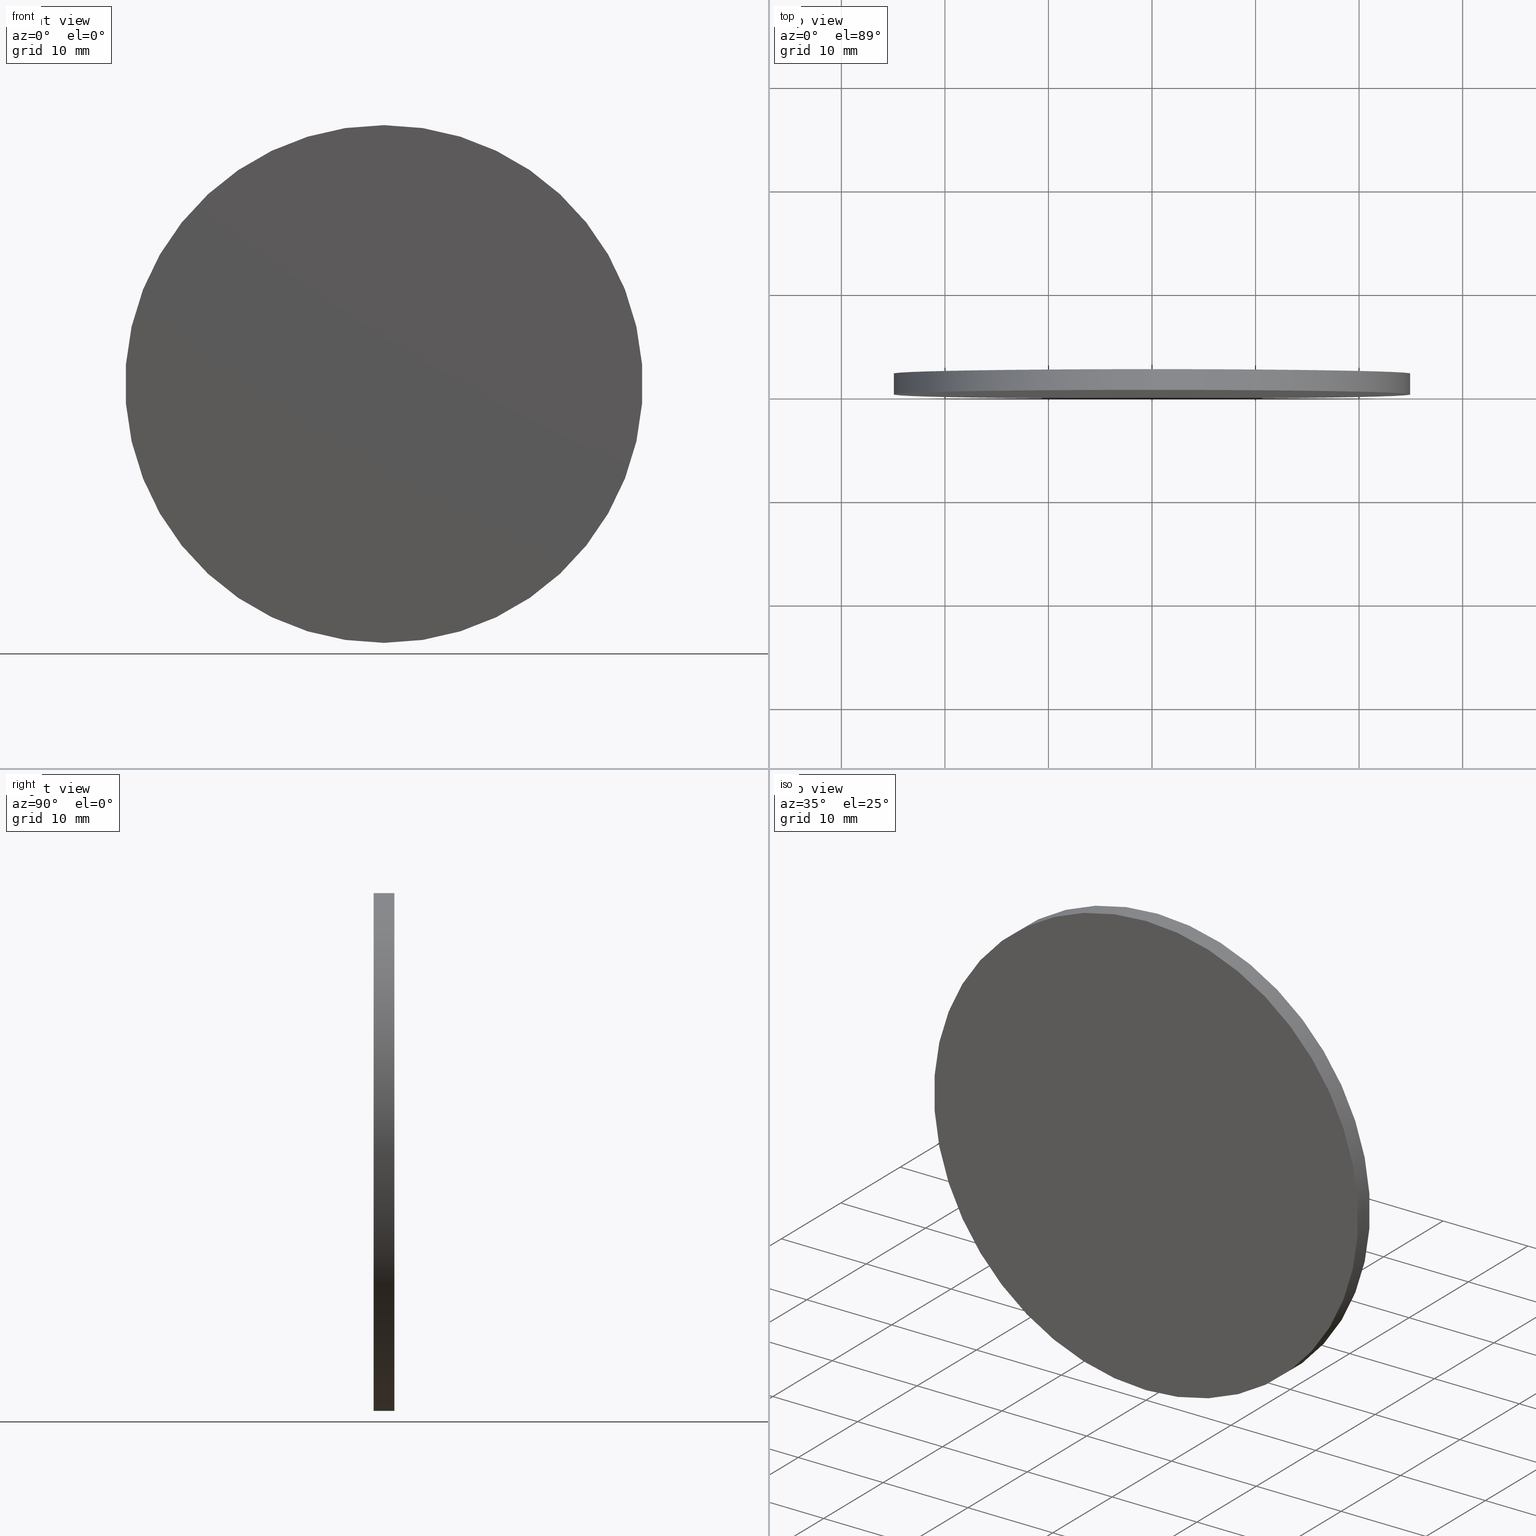
[diagram: canonical four-view strip — front | top / right | iso, engineering-drawing reading convention]
A machine part, canonical four-view strip (front | top / right | iso — engineering-drawing reading convention). The complete STEP part file that produces these views, byte-faithful:
ISO-10303-21;
HEADER;
FILE_DESCRIPTION (( 'STEP AP214' ),
    '1' );
FILE_NAME ('208633.STEP',
    '2019-07-26T01:50:37',
    ( 'user' ),
    ( '΢���й�' ),
    'SwSTEP 2.0',
    'SolidWorks 2016',
    '' );
FILE_SCHEMA (( 'AUTOMOTIVE_DESIGN' ));
ENDSEC;

DATA;
#1 = DIRECTION ( 'NONE',  ( 0.0000000000000000000, 0.0000000000000000000, -1.000000000000000000 ) ) ;
#2 = AXIS2_PLACEMENT_3D ( 'NONE', #122, #9, #77 ) ;
#3 = VERTEX_POINT ( 'NONE', #20 ) ;
#4 = ADVANCED_FACE ( 'NONE', ( #138 ), #74, .T. ) ;
#5 = VECTOR ( 'NONE', #100, 1000.000000000000000 ) ;
#6 =( NAMED_UNIT ( * ) PLANE_ANGLE_UNIT ( ) SI_UNIT ( $, .RADIAN. ) );
#7 = FILL_AREA_STYLE_COLOUR ( '', #84 ) ;
#8 = AXIS2_PLACEMENT_3D ( 'NONE', #79, #139, #68 ) ;
#9 = DIRECTION ( 'NONE',  ( 0.0000000000000000000, 1.000000000000000000, 0.0000000000000000000 ) ) ;
#10 = CARTESIAN_POINT ( 'NONE',  ( 0.0000000000000000000, 2.000000000000000000, 0.0000000000000000000 ) ) ;
#11 = CARTESIAN_POINT ( 'NONE',  ( 0.0000000000000000000, 2.000000000000000000, -25.00000000000000000 ) ) ;
#12 = DIRECTION ( 'NONE',  ( -0.0000000000000000000, -1.000000000000000000, -0.0000000000000000000 ) ) ;
#13 = FACE_OUTER_BOUND ( 'NONE', #58, .T. ) ;
#14 = VECTOR ( 'NONE', #70, 1000.000000000000000 ) ;
#15 = AXIS2_PLACEMENT_3D ( 'NONE', #34, #102, #19 ) ;
#16 = SURFACE_STYLE_USAGE ( .BOTH. , #96 ) ;
#17 = CARTESIAN_POINT ( 'NONE',  ( 3.061616997868383000E-015, 0.0000000000000000000, 25.00000000000000000 ) ) ;
#18 = PRODUCT_RELATED_PRODUCT_CATEGORY ( 'part', '', ( #117 ) ) ;
#19 = DIRECTION ( 'NONE',  ( 0.0000000000000000000, 0.0000000000000000000, 1.000000000000000000 ) ) ;
#20 = CARTESIAN_POINT ( 'NONE',  ( 0.0000000000000000000, 2.000000000000000000, -25.00000000000000000 ) ) ;
#21 = UNCERTAINTY_MEASURE_WITH_UNIT (LENGTH_MEASURE( 1.000000000000000100E-005 ), #135, 'distance_accuracy_value', 'NONE');
#22 = ORIENTED_EDGE ( 'NONE', *, *, #25, .F. ) ;
#23 = PRESENTATION_LAYER_ASSIGNMENT (  '', '', ( #78 ) ) ;
#24 = ORIENTED_EDGE ( 'NONE', *, *, #66, .T. ) ;
#25 = EDGE_CURVE ( 'NONE', #86, #115, #98, .T. ) ;
#26 = SURFACE_STYLE_FILL_AREA ( #29 ) ;
#27 = PRODUCT_DEFINITION_FORMATION_WITH_SPECIFIED_SOURCE ( '�κ�', '', #117, .NOT_KNOWN. ) ;
#28 = CLOSED_SHELL ( 'NONE', ( #61, #4, #105, #48 ) ) ;
#29 = FILL_AREA_STYLE ('',( #7 ) ) ;
#30 =( NAMED_UNIT ( * ) PLANE_ANGLE_UNIT ( ) SI_UNIT ( $, .RADIAN. ) );
#31 = AXIS2_PLACEMENT_3D ( 'NONE', #10, #54, #82 ) ;
#32 = ORIENTED_EDGE ( 'NONE', *, *, #66, .F. ) ;
#33 = FACE_OUTER_BOUND ( 'NONE', #60, .T. ) ;
#34 = CARTESIAN_POINT ( 'NONE',  ( 0.0000000000000000000, 2.000000000000000000, 0.0000000000000000000 ) ) ;
#35 = AXIS2_PLACEMENT_3D ( 'NONE', #130, #55, #124 ) ;
#36 = EDGE_CURVE ( 'NONE', #111, #3, #125, .T. ) ;
#37 = AXIS2_PLACEMENT_3D ( 'NONE', #89, #42, #110 ) ;
#38 = APPLICATION_PROTOCOL_DEFINITION ( 'draft international standard', 'automotive_design', 1998, #118 ) ;
#39 = EDGE_CURVE ( 'NONE', #115, #86, #44, .T. ) ;
#40 = SURFACE_STYLE_USAGE ( .BOTH. , #120 ) ;
#41 =( GEOMETRIC_REPRESENTATION_CONTEXT ( 3 ) GLOBAL_UNCERTAINTY_ASSIGNED_CONTEXT ( ( #85 ) ) GLOBAL_UNIT_ASSIGNED_CONTEXT ( ( #87, #6, #76 ) ) REPRESENTATION_CONTEXT ( 'NONE', 'WORKASPACE' ) );
#42 = DIRECTION ( 'NONE',  ( 0.0000000000000000000, 1.000000000000000000, 0.0000000000000000000 ) ) ;
#43 = SHAPE_DEFINITION_REPRESENTATION ( #92, #133 ) ;
#44 = CIRCLE ( 'NONE', #112, 25.00000000000000000 ) ;
#45 = PRODUCT_DEFINITION ( 'δ֪', '', #27, #52 ) ;
#46 = EDGE_CURVE ( 'NONE', #3, #115, #72, .T. ) ;
#47 = ORIENTED_EDGE ( 'NONE', *, *, #39, .T. ) ;
#48 = ADVANCED_FACE ( 'NONE', ( #13 ), #123, .F. ) ;
#49 = EDGE_LOOP ( 'NONE', ( #134, #116 ) ) ;
#50 = PRODUCT_CONTEXT ( 'NONE', #107, 'mechanical' ) ;
#51 = FILL_AREA_STYLE ('',( #128 ) ) ;
#52 = PRODUCT_DEFINITION_CONTEXT ( 'detailed design', #118, 'design' ) ;
#53 = CARTESIAN_POINT ( 'NONE',  ( 0.0000000000000000000, 0.0000000000000000000, -25.00000000000000000 ) ) ;
#54 = DIRECTION ( 'NONE',  ( -0.0000000000000000000, -1.000000000000000000, -0.0000000000000000000 ) ) ;
#55 = DIRECTION ( 'NONE',  ( 0.0000000000000000000, 1.000000000000000000, 0.0000000000000000000 ) ) ;
#56 = ORIENTED_EDGE ( 'NONE', *, *, #57, .F. ) ;
#57 = EDGE_CURVE ( 'NONE', #3, #111, #121, .T. ) ;
#58 = EDGE_LOOP ( 'NONE', ( #62, #22 ) ) ;
#59 = PRESENTATION_STYLE_ASSIGNMENT (( #40 ) ) ;
#60 = EDGE_LOOP ( 'NONE', ( #132, #24, #113, #71 ) ) ;
#61 = ADVANCED_FACE ( 'NONE', ( #33 ), #91, .T. ) ;
#62 = ORIENTED_EDGE ( 'NONE', *, *, #39, .F. ) ;
#63 = FACE_OUTER_BOUND ( 'NONE', #49, .T. ) ;
#64 = MECHANICAL_DESIGN_GEOMETRIC_PRESENTATION_REPRESENTATION (  '', ( #78 ), #80 ) ;
#65 = DIRECTION ( 'NONE',  ( 0.0000000000000000000, 0.0000000000000000000, 1.000000000000000000 ) ) ;
#66 = EDGE_CURVE ( 'NONE', #111, #86, #104, .T. ) ;
#67 =( NAMED_UNIT ( * ) PLANE_ANGLE_UNIT ( ) SI_UNIT ( $, .RADIAN. ) );
#68 = DIRECTION ( 'NONE',  ( 0.0000000000000000000, 0.0000000000000000000, 1.000000000000000000 ) ) ;
#69 = DIRECTION ( 'NONE',  ( 0.0000000000000000000, 0.0000000000000000000, 1.000000000000000000 ) ) ;
#70 = DIRECTION ( 'NONE',  ( -0.0000000000000000000, -1.000000000000000000, -0.0000000000000000000 ) ) ;
#71 = ORIENTED_EDGE ( 'NONE', *, *, #46, .F. ) ;
#72 = LINE ( 'NONE', #11, #14 ) ;
#73 =( GEOMETRIC_REPRESENTATION_CONTEXT ( 3 ) GLOBAL_UNCERTAINTY_ASSIGNED_CONTEXT ( ( #21 ) ) GLOBAL_UNIT_ASSIGNED_CONTEXT ( ( #135, #67, #127 ) ) REPRESENTATION_CONTEXT ( 'NONE', 'WORKASPACE' ) );
#74 = CYLINDRICAL_SURFACE ( 'NONE', #93, 25.00000000000000000 ) ;
#75 = PRESENTATION_LAYER_ASSIGNMENT (  '', '', ( #101 ) ) ;
#76 =( NAMED_UNIT ( * ) SI_UNIT ( $, .STERADIAN. ) SOLID_ANGLE_UNIT ( ) );
#77 = DIRECTION ( 'NONE',  ( 0.0000000000000000000, -0.0000000000000000000, 1.000000000000000000 ) ) ;
#78 = STYLED_ITEM ( 'NONE', ( #59 ), #114 ) ;
#79 = CARTESIAN_POINT ( 'NONE',  ( 0.0000000000000000000, 2.000000000000000000, 0.0000000000000000000 ) ) ;
#80 =( GEOMETRIC_REPRESENTATION_CONTEXT ( 3 ) GLOBAL_UNCERTAINTY_ASSIGNED_CONTEXT ( ( #90 ) ) GLOBAL_UNIT_ASSIGNED_CONTEXT ( ( #108, #30, #97 ) ) REPRESENTATION_CONTEXT ( 'NONE', 'WORKASPACE' ) );
#81 = CARTESIAN_POINT ( 'NONE',  ( 0.0000000000000000000, 0.0000000000000000000, 0.0000000000000000000 ) ) ;
#82 = DIRECTION ( 'NONE',  ( 0.0000000000000000000, 0.0000000000000000000, -1.000000000000000000 ) ) ;
#83 = ORIENTED_EDGE ( 'NONE', *, *, #46, .T. ) ;
#84 = COLOUR_RGB ( '',1.000000000000000000, 1.000000000000000000, 1.000000000000000000 ) ;
#85 = UNCERTAINTY_MEASURE_WITH_UNIT (LENGTH_MEASURE( 1.000000000000000100E-005 ), #87, 'distance_accuracy_value', 'NONE');
#86 = VERTEX_POINT ( 'NONE', #17 ) ;
#87 =( LENGTH_UNIT ( ) NAMED_UNIT ( * ) SI_UNIT ( .MILLI., .METRE. ) );
#88 = SURFACE_STYLE_FILL_AREA ( #51 ) ;
#89 = CARTESIAN_POINT ( 'NONE',  ( 0.0000000000000000000, 0.0000000000000000000, 0.0000000000000000000 ) ) ;
#90 = UNCERTAINTY_MEASURE_WITH_UNIT (LENGTH_MEASURE( 1.000000000000000100E-005 ), #108, 'distance_accuracy_value', 'NONE');
#91 = CYLINDRICAL_SURFACE ( 'NONE', #31, 25.00000000000000000 ) ;
#92 = PRODUCT_DEFINITION_SHAPE ( 'NONE', 'NONE',  #45 ) ;
#93 = AXIS2_PLACEMENT_3D ( 'NONE', #103, #12, #1 ) ;
#94 = EDGE_LOOP ( 'NONE', ( #32, #56, #83, #47 ) ) ;
#95 = COLOUR_RGB ( '',1.000000000000000000, 1.000000000000000000, 1.000000000000000000 ) ;
#96 = SURFACE_SIDE_STYLE ('',( #26 ) ) ;
#97 =( NAMED_UNIT ( * ) SI_UNIT ( $, .STERADIAN. ) SOLID_ANGLE_UNIT ( ) );
#98 = CIRCLE ( 'NONE', #35, 25.00000000000000000 ) ;
#99 = PLANE ( 'NONE',  #2 ) ;
#100 = DIRECTION ( 'NONE',  ( -0.0000000000000000000, -1.000000000000000000, -0.0000000000000000000 ) ) ;
#101 = STYLED_ITEM ( 'NONE', ( #136 ), #133 ) ;
#102 = DIRECTION ( 'NONE',  ( 0.0000000000000000000, 1.000000000000000000, 0.0000000000000000000 ) ) ;
#103 = CARTESIAN_POINT ( 'NONE',  ( 0.0000000000000000000, 2.000000000000000000, 0.0000000000000000000 ) ) ;
#104 = LINE ( 'NONE', #129, #5 ) ;
#105 = ADVANCED_FACE ( 'NONE', ( #63 ), #99, .T. ) ;
#106 = AXIS2_PLACEMENT_3D ( 'NONE', #137, #65, #126 ) ;
#107 = APPLICATION_CONTEXT ( 'automotive_design' ) ;
#108 =( LENGTH_UNIT ( ) NAMED_UNIT ( * ) SI_UNIT ( .MILLI., .METRE. ) );
#109 = CARTESIAN_POINT ( 'NONE',  ( 3.061616997868383000E-015, 2.000000000000000000, 25.00000000000000000 ) ) ;
#110 = DIRECTION ( 'NONE',  ( 0.0000000000000000000, -0.0000000000000000000, 1.000000000000000000 ) ) ;
#111 = VERTEX_POINT ( 'NONE', #109 ) ;
#112 = AXIS2_PLACEMENT_3D ( 'NONE', #81, #140, #69 ) ;
#113 = ORIENTED_EDGE ( 'NONE', *, *, #25, .T. ) ;
#114 = MANIFOLD_SOLID_BREP ( '͹̨-����1', #28 ) ;
#115 = VERTEX_POINT ( 'NONE', #53 ) ;
#116 = ORIENTED_EDGE ( 'NONE', *, *, #36, .T. ) ;
#117 = PRODUCT ( '208633', '208633', '', ( #50 ) ) ;
#118 = APPLICATION_CONTEXT ( 'automotive_design' ) ;
#119 = APPLICATION_PROTOCOL_DEFINITION ( 'draft international standard', 'automotive_design', 1998, #107 ) ;
#120 = SURFACE_SIDE_STYLE ('',( #88 ) ) ;
#121 = CIRCLE ( 'NONE', #8, 25.00000000000000000 ) ;
#122 = CARTESIAN_POINT ( 'NONE',  ( 0.0000000000000000000, 2.000000000000000000, 0.0000000000000000000 ) ) ;
#123 = PLANE ( 'NONE',  #37 ) ;
#124 = DIRECTION ( 'NONE',  ( 0.0000000000000000000, 0.0000000000000000000, 1.000000000000000000 ) ) ;
#125 = CIRCLE ( 'NONE', #15, 25.00000000000000000 ) ;
#126 = DIRECTION ( 'NONE',  ( 1.000000000000000000, 0.0000000000000000000, 0.0000000000000000000 ) ) ;
#127 =( NAMED_UNIT ( * ) SI_UNIT ( $, .STERADIAN. ) SOLID_ANGLE_UNIT ( ) );
#128 = FILL_AREA_STYLE_COLOUR ( '', #95 ) ;
#129 = CARTESIAN_POINT ( 'NONE',  ( 3.061616997868383000E-015, 2.000000000000000000, 25.00000000000000000 ) ) ;
#130 = CARTESIAN_POINT ( 'NONE',  ( 0.0000000000000000000, 0.0000000000000000000, 0.0000000000000000000 ) ) ;
#131 = MECHANICAL_DESIGN_GEOMETRIC_PRESENTATION_REPRESENTATION (  '', ( #101 ), #41 ) ;
#132 = ORIENTED_EDGE ( 'NONE', *, *, #36, .F. ) ;
#133 = ADVANCED_BREP_SHAPE_REPRESENTATION ( '208633', ( #114, #106 ), #73 ) ;
#134 = ORIENTED_EDGE ( 'NONE', *, *, #57, .T. ) ;
#135 =( LENGTH_UNIT ( ) NAMED_UNIT ( * ) SI_UNIT ( .MILLI., .METRE. ) );
#136 = PRESENTATION_STYLE_ASSIGNMENT (( #16 ) ) ;
#137 = CARTESIAN_POINT ( 'NONE',  ( 0.0000000000000000000, 0.0000000000000000000, 0.0000000000000000000 ) ) ;
#138 = FACE_OUTER_BOUND ( 'NONE', #94, .T. ) ;
#139 = DIRECTION ( 'NONE',  ( 0.0000000000000000000, 1.000000000000000000, 0.0000000000000000000 ) ) ;
#140 = DIRECTION ( 'NONE',  ( 0.0000000000000000000, 1.000000000000000000, 0.0000000000000000000 ) ) ;
ENDSEC;
END-ISO-10303-21;
